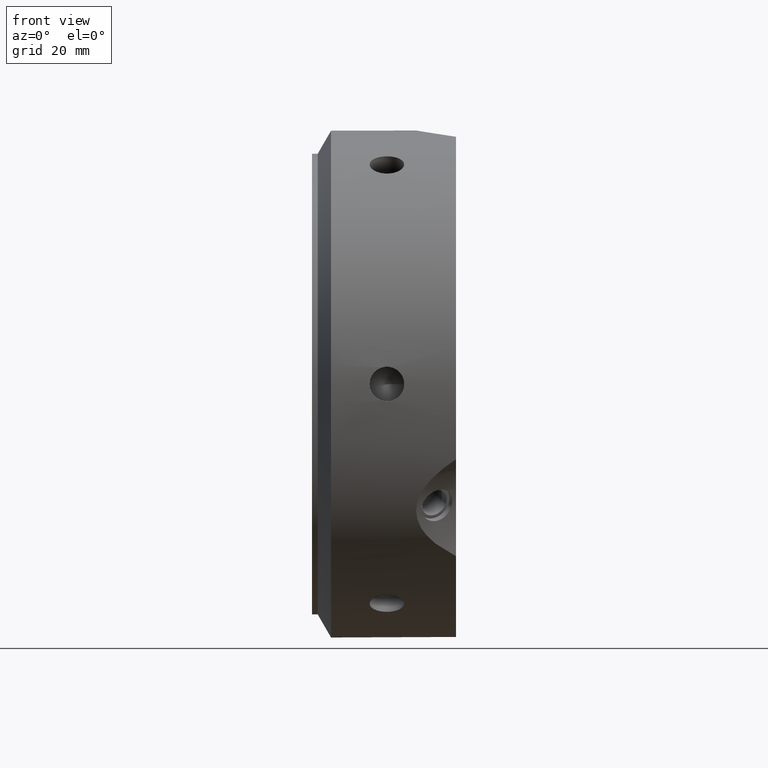
[diagram: clean part render]
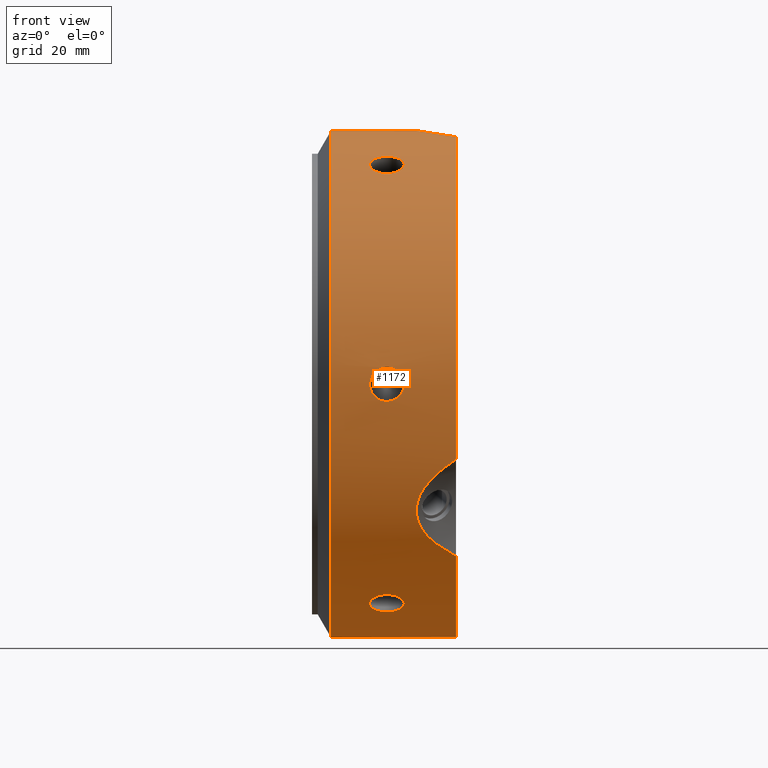
[diagram: same view with one face highlighted and labeled with its STEP entity id]
A machine part, front view. The second image highlights one B-rep face of the part: STEP entity #1172.
In plain terms, the highlighted cylindrical surface (bore or boss wall) has radius 44 mm, axis along (1, 0, 0).
Its self-contained STEP definition (entity closure, byte-faithful):
#90=CARTESIAN_POINT('',(10.0,22.000000000000036,38.105117766515278));
#91=VERTEX_POINT('',#90);
#92=CARTESIAN_POINT('',(16.0,22.000000000000043,38.105117766515278));
#93=VERTEX_POINT('',#92);
#94=CARTESIAN_POINT('',(10.0,22.000000000000043,38.105117766515278));
#95=CARTESIAN_POINT('',(10.0,22.326328743708686,37.916711778490779));
#96=CARTESIAN_POINT('',(10.075329883855455,22.671671312323024,37.711165210294944));
#97=CARTESIAN_POINT('',(10.381527320390463,23.302106828142662,37.324904272929189));
#98=CARTESIAN_POINT('',(10.612388408838191,23.587345932204158,37.144423378365651));
#99=CARTESIAN_POINT('',(11.14497109894193,24.035722732746287,36.855869397632311));
#100=CARTESIAN_POINT('',(11.482235769530414,24.228806475772441,36.728578373075727));
#101=CARTESIAN_POINT('',(12.221339126363999,24.4843182185306,36.558743057832665));
#102=CARTESIAN_POINT('',(12.623187748161129,24.546880279001325,36.516443810540693));
#103=CARTESIAN_POINT('',(13.376812251838873,24.546880279001325,36.516443810540693));
#104=CARTESIAN_POINT('',(13.778660873636001,24.484318218530603,36.558743057832665));
#105=CARTESIAN_POINT('',(14.517764230469584,24.228806475772444,36.728578373075727));
#106=CARTESIAN_POINT('',(14.855028901058066,24.035722732746294,36.855869397632311));
#107=CARTESIAN_POINT('',(15.387611591161807,23.587345932204165,37.144423378365651));
#108=CARTESIAN_POINT('',(15.618472679609539,23.302106828142662,37.324904272929189));
#109=CARTESIAN_POINT('',(15.924670116144545,22.671671312323024,37.711165210294944));
#110=CARTESIAN_POINT('',(16.0,22.326328743708686,37.916711778490779));
#111=CARTESIAN_POINT('',(16.0,22.000000000000036,38.105117766515285));
#112=B_SPLINE_CURVE_WITH_KNOTS('',3,(#94,#95,#96,#97,#98,#99,#100,#101,#102,#103,#104,#105,#106,#107,#108,#109,#110,#111),.UNSPECIFIED.,.F.,.U.,(4,2,2,2,2,2,2,2,4),(0.45217453673272,0.565218129547419,0.678261722362117,0.791305397913779,0.904349073465441,1.017392749017102,1.130436424568764,1.243480017383463,1.356523610198162),.UNSPECIFIED.);
#113=EDGE_CURVE('',#91,#93,#112,.T.);
#115=CARTESIAN_POINT('',(16.0,22.000000000000036,38.105117766515278));
#116=CARTESIAN_POINT('',(16.0,21.673671256291396,38.293523754539777));
#117=CARTESIAN_POINT('',(15.924670116144545,21.322991422265925,38.489825907870056));
#118=CARTESIAN_POINT('',(15.618472679609539,20.673261880107773,38.842668611334929));
#119=CARTESIAN_POINT('',(15.387611591161809,20.374341288487258,38.999452474323128));
#120=CARTESIAN_POINT('',(14.855028901058072,19.900257810537994,39.243481183693532));
#121=CARTESIAN_POINT('',(14.517764230469588,19.693478678085164,39.347051097933672));
#122=CARTESIAN_POINT('',(13.778660873636001,19.418641109245858,39.483413100505949));
#123=CARTESIAN_POINT('',(13.376812251838873,19.350727856294693,39.5164438105407));
#124=CARTESIAN_POINT('',(13.0,19.350727856294693,39.5164438105407));
#125=CARTESIAN_POINT('',(12.623187748161129,19.350727856294693,39.5164438105407));
#126=CARTESIAN_POINT('',(12.221339126363999,19.418641109245858,39.483413100505949));
#127=CARTESIAN_POINT('',(11.482235769530414,19.693478678085164,39.347051097933672));
#128=CARTESIAN_POINT('',(11.14497109894193,19.900257810537994,39.243481183693532));
#129=CARTESIAN_POINT('',(10.612388408838191,20.374341288487258,38.999452474323128));
#130=CARTESIAN_POINT('',(10.381527320390457,20.673261880107777,38.842668611334929));
#131=CARTESIAN_POINT('',(10.075329883855453,21.322991422265929,38.489825907870056));
#132=CARTESIAN_POINT('',(10.0,21.673671256291396,38.293523754539777));
#133=CARTESIAN_POINT('',(10.0,22.000000000000043,38.105117766515278));
#134=B_SPLINE_CURVE_WITH_KNOTS('',3,(#115,#116,#117,#118,#119,#120,#121,#122,#123,#124,#125,#126,#127,#128,#129,#130,#131,#132,#133),.UNSPECIFIED.,.F.,.U.,(4,2,2,2,3,2,2,2,4),(1.356523610198162,1.46956720301286,1.582610795827559,1.69565447137922,1.808698146930882,1.921741822482543,2.034785498034205,2.147829090848904,2.260872683663602),.UNSPECIFIED.);
#135=EDGE_CURVE('',#93,#91,#134,.T.);
#202=CARTESIAN_POINT('',(10.0,44.0,-2.930989E-014));
#203=VERTEX_POINT('',#202);
#204=CARTESIAN_POINT('',(16.0,44.0,-3.108624E-014));
#205=VERTEX_POINT('',#204);
#206=CARTESIAN_POINT('',(9.999999999999998,43.999999999999993,-3.268219E-014));
#207=CARTESIAN_POINT('',(9.999999999999998,43.999999999999993,-0.376811976049028));
#208=CARTESIAN_POINT('',(10.075329883855455,43.994662734588871,-0.778660697575135));
#209=CARTESIAN_POINT('',(10.381527320390463,43.97536870825035,-1.51776433840577));
#210=CARTESIAN_POINT('',(10.612388408838191,43.961687220691338,-1.85502909595751));
#211=CARTESIAN_POINT('',(11.14497109894193,43.935980543284202,-2.387611786061248));
#212=CARTESIAN_POINT('',(11.482235769530414,43.92228515385753,-2.618472724857975));
#213=CARTESIAN_POINT('',(12.221339126363999,43.902959327776387,-2.924670042673307));
#214=CARTESIAN_POINT('',(12.623187748161129,43.89760813529594,-3.000000000000034));
#215=CARTESIAN_POINT('',(13.376812251838871,43.897608135295926,-3.000000000000034));
#216=CARTESIAN_POINT('',(13.778660873635998,43.902959327776387,-2.924670042673308));
#217=CARTESIAN_POINT('',(14.517764230469584,43.92228515385753,-2.618472724857977));
#218=CARTESIAN_POINT('',(14.85502890105807,43.935980543284202,-2.387611786061249));
#219=CARTESIAN_POINT('',(15.387611591161809,43.961687220691338,-1.85502909595751));
#220=CARTESIAN_POINT('',(15.618472679609539,43.97536870825035,-1.51776433840577));
#221=CARTESIAN_POINT('',(15.924670116144545,43.994662734588871,-0.778660697575136));
#222=CARTESIAN_POINT('',(16.0,43.999999999999993,-0.376811976049029));
#223=CARTESIAN_POINT('',(16.0,43.999999999999993,-3.386180E-014));
#224=B_SPLINE_CURVE_WITH_KNOTS('',3,(#206,#207,#208,#209,#210,#211,#212,#213,#214,#215,#216,#217,#218,#219,#220,#221,#222,#223),.UNSPECIFIED.,.F.,.U.,(4,2,2,2,2,2,2,2,4),(0.452174536732721,0.565218129547419,0.678261722362118,0.79130539791378,0.904349073465441,1.017392749017103,1.130436424568764,1.243480017383463,1.356523610198162),.UNSPECIFIED.);
#225=EDGE_CURVE('',#203,#205,#224,.T.);
#227=CARTESIAN_POINT('',(16.0,44.0,-3.400058E-014));
#228=CARTESIAN_POINT('',(16.0,44.0,0.376811976048961));
#229=CARTESIAN_POINT('',(15.924670116144547,43.994662734588879,0.778660697575069));
#230=CARTESIAN_POINT('',(15.618472679609539,43.975368708250357,1.517764338405705));
#231=CARTESIAN_POINT('',(15.387611591161807,43.961687220691331,1.855029095957442));
#232=CARTESIAN_POINT('',(14.855028901058072,43.935980543284202,2.387611786061182));
#233=CARTESIAN_POINT('',(14.517764230469588,43.92228515385753,2.61847272485791));
#234=CARTESIAN_POINT('',(13.778660873636001,43.902959327776387,2.924670042673242));
#235=CARTESIAN_POINT('',(13.376812251838873,43.89760813529594,2.999999999999967));
#236=CARTESIAN_POINT('',(13.0,43.89760813529594,2.999999999999967));
#237=CARTESIAN_POINT('',(12.623187748161129,43.89760813529594,2.999999999999967));
#238=CARTESIAN_POINT('',(12.221339126363999,43.902959327776387,2.924670042673242));
#239=CARTESIAN_POINT('',(11.482235769530414,43.92228515385753,2.61847272485791));
#240=CARTESIAN_POINT('',(11.14497109894193,43.935980543284202,2.387611786061182));
#241=CARTESIAN_POINT('',(10.612388408838191,43.961687220691338,1.855029095957443));
#242=CARTESIAN_POINT('',(10.381527320390463,43.97536870825035,1.517764338405704));
#243=CARTESIAN_POINT('',(10.075329883855455,43.994662734588871,0.77866069757507));
#244=CARTESIAN_POINT('',(9.999999999999998,43.999999999999993,0.376811976048963));
#245=CARTESIAN_POINT('',(9.999999999999998,43.999999999999993,-3.302913E-014));
#246=B_SPLINE_CURVE_WITH_KNOTS('',3,(#227,#228,#229,#230,#231,#232,#233,#234,#235,#236,#237,#238,#239,#240,#241,#242,#243,#244,#245),.UNSPECIFIED.,.F.,.U.,(4,2,2,2,3,2,2,2,4),(1.356523610198162,1.46956720301286,1.582610795827559,1.695654471379221,1.808698146930882,1.921741822482544,2.034785498034205,2.147829090848904,2.260872683663603),.UNSPECIFIED.);
#247=EDGE_CURVE('',#205,#203,#246,.T.);
#314=CARTESIAN_POINT('',(10.0,21.999999999999989,-38.105117766515306));
#315=VERTEX_POINT('',#314);
#316=CARTESIAN_POINT('',(16.0,21.999999999999986,-38.105117766515313));
#317=VERTEX_POINT('',#316);
#318=CARTESIAN_POINT('',(10.0,21.999999999999993,-38.105117766515306));
#319=CARTESIAN_POINT('',(10.0,21.67367125629135,-38.293523754539805));
#320=CARTESIAN_POINT('',(10.075329883855455,21.322991422265872,-38.489825907870085));
#321=CARTESIAN_POINT('',(10.381527320390466,20.673261880107713,-38.842668611334958));
#322=CARTESIAN_POINT('',(10.612388408838191,20.374341288487201,-38.999452474323149));
#323=CARTESIAN_POINT('',(11.14497109894193,19.900257810537948,-39.243481183693554));
#324=CARTESIAN_POINT('',(11.482235769530414,19.693478678085118,-39.347051097933694));
#325=CARTESIAN_POINT('',(12.221339126363999,19.418641109245812,-39.48341310050597));
#326=CARTESIAN_POINT('',(12.623187748161126,19.350727856294647,-39.516443810540729));
#327=CARTESIAN_POINT('',(13.376812251838874,19.350727856294647,-39.516443810540729));
#328=CARTESIAN_POINT('',(13.778660873636001,19.418641109245812,-39.48341310050597));
#329=CARTESIAN_POINT('',(14.517764230469588,19.693478678085118,-39.347051097933694));
#330=CARTESIAN_POINT('',(14.855028901058072,19.900257810537948,-39.243481183693554));
#331=CARTESIAN_POINT('',(15.387611591161811,20.374341288487201,-38.999452474323149));
#332=CARTESIAN_POINT('',(15.618472679609539,20.673261880107724,-38.84266861133495));
#333=CARTESIAN_POINT('',(15.924670116144545,21.322991422265879,-38.489825907870078));
#334=CARTESIAN_POINT('',(16.0,21.673671256291357,-38.293523754539805));
#335=CARTESIAN_POINT('',(16.0,21.999999999999996,-38.105117766515306));
#336=B_SPLINE_CURVE_WITH_KNOTS('',3,(#318,#319,#320,#321,#322,#323,#324,#325,#326,#327,#328,#329,#330,#331,#332,#333,#334,#335),.UNSPECIFIED.,.F.,.U.,(4,2,2,2,2,2,2,2,4),(0.45217453673272,0.565218129547419,0.678261722362117,0.791305397913779,0.904349073465441,1.017392749017102,1.130436424568764,1.243480017383463,1.356523610198161),.UNSPECIFIED.);
#337=EDGE_CURVE('',#315,#317,#336,.T.);
#339=CARTESIAN_POINT('',(16.0,21.999999999999996,-38.105117766515299));
#340=CARTESIAN_POINT('',(16.0,22.32632874370864,-37.916711778490807));
#341=CARTESIAN_POINT('',(15.924670116144547,22.671671312322971,-37.711165210294972));
#342=CARTESIAN_POINT('',(15.618472679609541,23.302106828142612,-37.324904272929217));
#343=CARTESIAN_POINT('',(15.387611591161809,23.587345932204116,-37.144423378365673));
#344=CARTESIAN_POINT('',(14.855028901058072,24.035722732746244,-36.85586939763234));
#345=CARTESIAN_POINT('',(14.51776423046959,24.228806475772402,-36.728578373075756));
#346=CARTESIAN_POINT('',(13.778660873636003,24.484318218530561,-36.5587430578327));
#347=CARTESIAN_POINT('',(13.376812251838873,24.546880279001275,-36.516443810540729));
#348=CARTESIAN_POINT('',(13.0,24.546880279001275,-36.516443810540729));
#349=CARTESIAN_POINT('',(12.623187748161129,24.546880279001275,-36.516443810540729));
#350=CARTESIAN_POINT('',(12.221339126363997,24.484318218530561,-36.5587430578327));
#351=CARTESIAN_POINT('',(11.482235769530412,24.228806475772402,-36.728578373075756));
#352=CARTESIAN_POINT('',(11.14497109894193,24.035722732746244,-36.85586939763234));
#353=CARTESIAN_POINT('',(10.612388408838189,23.587345932204116,-37.144423378365673));
#354=CARTESIAN_POINT('',(10.381527320390463,23.30210682814262,-37.324904272929217));
#355=CARTESIAN_POINT('',(10.075329883855455,22.671671312322982,-37.711165210294972));
#356=CARTESIAN_POINT('',(10.0,22.32632874370864,-37.916711778490814));
#357=CARTESIAN_POINT('',(10.0,21.999999999999993,-38.105117766515313));
#358=B_SPLINE_CURVE_WITH_KNOTS('',3,(#339,#340,#341,#342,#343,#344,#345,#346,#347,#348,#349,#350,#351,#352,#353,#354,#355,#356,#357),.UNSPECIFIED.,.F.,.U.,(4,2,2,2,3,2,2,2,4),(1.356523610198161,1.46956720301286,1.582610795827558,1.69565447137922,1.808698146930881,1.921741822482543,2.034785498034204,2.147829090848903,2.260872683663602),.UNSPECIFIED.);
#359=EDGE_CURVE('',#317,#315,#358,.T.);
#426=CARTESIAN_POINT('',(10.0,-22.000000000000021,-38.105117766515292));
#427=VERTEX_POINT('',#426);
#428=CARTESIAN_POINT('',(16.0,-22.000000000000021,-38.105117766515292));
#429=VERTEX_POINT('',#428);
#430=CARTESIAN_POINT('',(10.0,-22.000000000000021,-38.105117766515292));
#431=CARTESIAN_POINT('',(10.0,-22.326328743708661,-37.916711778490793));
#432=CARTESIAN_POINT('',(10.075329883855453,-22.671671312323003,-37.711165210294958));
#433=CARTESIAN_POINT('',(10.381527320390463,-23.302106828142644,-37.324904272929196));
#434=CARTESIAN_POINT('',(10.612388408838191,-23.587345932204144,-37.144423378365659));
#435=CARTESIAN_POINT('',(11.14497109894193,-24.035722732746269,-36.855869397632326));
#436=CARTESIAN_POINT('',(11.482235769530412,-24.228806475772423,-36.728578373075734));
#437=CARTESIAN_POINT('',(12.221339126364001,-24.484318218530582,-36.558743057832672));
#438=CARTESIAN_POINT('',(12.623187748161131,-24.5468802790013,-36.516443810540707));
#439=CARTESIAN_POINT('',(13.376812251838871,-24.5468802790013,-36.516443810540707));
#440=CARTESIAN_POINT('',(13.778660873636001,-24.484318218530582,-36.558743057832672));
#441=CARTESIAN_POINT('',(14.517764230469588,-24.228806475772423,-36.728578373075734));
#442=CARTESIAN_POINT('',(14.85502890105807,-24.035722732746269,-36.855869397632318));
#443=CARTESIAN_POINT('',(15.387611591161807,-23.587345932204144,-37.144423378365659));
#444=CARTESIAN_POINT('',(15.618472679609535,-23.302106828142644,-37.324904272929203));
#445=CARTESIAN_POINT('',(15.924670116144547,-22.671671312322999,-37.711165210294965));
#446=CARTESIAN_POINT('',(16.0,-22.326328743708661,-37.916711778490793));
#447=CARTESIAN_POINT('',(16.0,-22.000000000000021,-38.105117766515292));
#448=B_SPLINE_CURVE_WITH_KNOTS('',3,(#430,#431,#432,#433,#434,#435,#436,#437,#438,#439,#440,#441,#442,#443,#444,#445,#446,#447),.UNSPECIFIED.,.F.,.U.,(4,2,2,2,2,2,2,2,4),(0.45217453673272,0.565218129547419,0.678261722362118,0.791305397913779,0.904349073465441,1.017392749017102,1.130436424568764,1.243480017383463,1.356523610198162),.UNSPECIFIED.);
#449=EDGE_CURVE('',#427,#429,#448,.T.);
#451=CARTESIAN_POINT('',(16.0,-22.000000000000014,-38.105117766515299));
#452=CARTESIAN_POINT('',(16.0,-21.673671256291371,-38.293523754539798));
#453=CARTESIAN_POINT('',(15.924670116144545,-21.322991422265897,-38.48982590787007));
#454=CARTESIAN_POINT('',(15.618472679609534,-20.673261880107741,-38.842668611334943));
#455=CARTESIAN_POINT('',(15.387611591161807,-20.37434128848723,-38.999452474323135));
#456=CARTESIAN_POINT('',(14.855028901058072,-19.900257810537973,-39.243481183693532));
#457=CARTESIAN_POINT('',(14.517764230469584,-19.693478678085143,-39.347051097933686));
#458=CARTESIAN_POINT('',(13.778660873635996,-19.418641109245836,-39.483413100505956));
#459=CARTESIAN_POINT('',(13.376812251838871,-19.350727856294672,-39.516443810540714));
#460=CARTESIAN_POINT('',(13.0,-19.350727856294672,-39.516443810540714));
#461=CARTESIAN_POINT('',(12.623187748161129,-19.350727856294672,-39.516443810540714));
#462=CARTESIAN_POINT('',(12.221339126363999,-19.41864110924584,-39.483413100505956));
#463=CARTESIAN_POINT('',(11.482235769530414,-19.69347867808515,-39.347051097933686));
#464=CARTESIAN_POINT('',(11.14497109894193,-19.900257810537973,-39.243481183693532));
#465=CARTESIAN_POINT('',(10.612388408838191,-20.37434128848723,-38.999452474323135));
#466=CARTESIAN_POINT('',(10.381527320390465,-20.673261880107745,-38.842668611334936));
#467=CARTESIAN_POINT('',(10.075329883855453,-21.3229914222659,-38.489825907870063));
#468=CARTESIAN_POINT('',(10.000000000000002,-21.673671256291378,-38.293523754539791));
#469=CARTESIAN_POINT('',(10.000000000000002,-22.000000000000021,-38.105117766515292));
#470=B_SPLINE_CURVE_WITH_KNOTS('',3,(#451,#452,#453,#454,#455,#456,#457,#458,#459,#460,#461,#462,#463,#464,#465,#466,#467,#468,#469),.UNSPECIFIED.,.F.,.U.,(4,2,2,2,3,2,2,2,4),(1.356523610198162,1.46956720301286,1.582610795827559,1.69565447137922,1.808698146930882,1.921741822482543,2.034785498034205,2.147829090848904,2.260872683663602),.UNSPECIFIED.);
#471=EDGE_CURVE('',#429,#427,#470,.T.);
#538=CARTESIAN_POINT('',(10.0,-44.0,1.221245E-014));
#539=VERTEX_POINT('',#538);
#540=CARTESIAN_POINT('',(16.0,-44.0,1.554312E-014));
#541=VERTEX_POINT('',#540);
#542=CARTESIAN_POINT('',(9.999999999999998,-43.999999999999993,1.387779E-014));
#543=CARTESIAN_POINT('',(9.999999999999998,-43.999999999999993,0.37681197604901));
#544=CARTESIAN_POINT('',(10.075329883855455,-43.994662734588871,0.778660697575116));
#545=CARTESIAN_POINT('',(10.381527320390463,-43.97536870825035,1.517764338405751));
#546=CARTESIAN_POINT('',(10.612388408838189,-43.961687220691338,1.85502909595749));
#547=CARTESIAN_POINT('',(11.14497109894193,-43.935980543284202,2.38761178606123));
#548=CARTESIAN_POINT('',(11.482235769530414,-43.92228515385753,2.618472724857957));
#549=CARTESIAN_POINT('',(12.221339126363999,-43.902959327776387,2.924670042673289));
#550=CARTESIAN_POINT('',(12.623187748161129,-43.89760813529594,3.000000000000015));
#551=CARTESIAN_POINT('',(13.376812251838873,-43.89760813529594,3.000000000000015));
#552=CARTESIAN_POINT('',(13.778660873636001,-43.902959327776387,2.924670042673289));
#553=CARTESIAN_POINT('',(14.517764230469588,-43.92228515385753,2.618472724857957));
#554=CARTESIAN_POINT('',(14.855028901058072,-43.935980543284202,2.38761178606123));
#555=CARTESIAN_POINT('',(15.387611591161809,-43.961687220691338,1.855029095957491));
#556=CARTESIAN_POINT('',(15.618472679609539,-43.97536870825035,1.517764338405752));
#557=CARTESIAN_POINT('',(15.924670116144545,-43.994662734588871,0.778660697575117));
#558=CARTESIAN_POINT('',(16.0,-43.999999999999993,0.37681197604901));
#559=CARTESIAN_POINT('',(16.0,-43.999999999999993,1.471046E-014));
#560=B_SPLINE_CURVE_WITH_KNOTS('',3,(#542,#543,#544,#545,#546,#547,#548,#549,#550,#551,#552,#553,#554,#555,#556,#557,#558,#559),.UNSPECIFIED.,.F.,.U.,(4,2,2,2,2,2,2,2,4),(0.452174536732721,0.565218129547419,0.678261722362118,0.79130539791378,0.904349073465441,1.017392749017103,1.130436424568764,1.243480017383463,1.356523610198162),.UNSPECIFIED.);
#561=EDGE_CURVE('',#539,#541,#560,.T.);
#563=CARTESIAN_POINT('',(16.0,-43.999999999999993,1.484923E-014));
#564=CARTESIAN_POINT('',(16.0,-43.999999999999993,-0.376811976048981));
#565=CARTESIAN_POINT('',(15.924670116144545,-43.994662734588871,-0.778660697575088));
#566=CARTESIAN_POINT('',(15.618472679609539,-43.97536870825035,-1.517764338405722));
#567=CARTESIAN_POINT('',(15.387611591161809,-43.961687220691338,-1.855029095957461));
#568=CARTESIAN_POINT('',(14.855028901058072,-43.935980543284202,-2.3876117860612));
#569=CARTESIAN_POINT('',(14.517764230469588,-43.92228515385753,-2.618472724857929));
#570=CARTESIAN_POINT('',(13.778660873636001,-43.902959327776387,-2.924670042673261));
#571=CARTESIAN_POINT('',(13.376812251838873,-43.89760813529594,-2.999999999999986));
#572=CARTESIAN_POINT('',(13.0,-43.89760813529594,-2.999999999999986));
#573=CARTESIAN_POINT('',(12.623187748161129,-43.89760813529594,-2.999999999999986));
#574=CARTESIAN_POINT('',(12.221339126363999,-43.902959327776387,-2.924670042673261));
#575=CARTESIAN_POINT('',(11.482235769530414,-43.92228515385753,-2.618472724857929));
#576=CARTESIAN_POINT('',(11.14497109894193,-43.935980543284202,-2.387611786061201));
#577=CARTESIAN_POINT('',(10.612388408838191,-43.961687220691338,-1.855029095957462));
#578=CARTESIAN_POINT('',(10.381527320390463,-43.97536870825035,-1.517764338405723));
#579=CARTESIAN_POINT('',(10.075329883855455,-43.994662734588871,-0.778660697575089));
#580=CARTESIAN_POINT('',(9.999999999999998,-43.999999999999993,-0.376811976048982));
#581=CARTESIAN_POINT('',(9.999999999999998,-43.999999999999993,1.408595E-014));
#582=B_SPLINE_CURVE_WITH_KNOTS('',3,(#563,#564,#565,#566,#567,#568,#569,#570,#571,#572,#573,#574,#575,#576,#577,#578,#579,#580,#581),.UNSPECIFIED.,.F.,.U.,(4,2,2,2,3,2,2,2,4),(1.356523610198162,1.46956720301286,1.582610795827559,1.69565447137922,1.808698146930882,1.921741822482543,2.034785498034205,2.147829090848904,2.260872683663603),.UNSPECIFIED.);
#583=EDGE_CURVE('',#541,#539,#582,.T.);
#687=CARTESIAN_POINT('',(10.0,-21.999999999999996,38.105117766515299));
#688=VERTEX_POINT('',#687);
#689=CARTESIAN_POINT('',(16.0,-21.999999999999993,38.105117766515306));
#690=VERTEX_POINT('',#689);
#691=CARTESIAN_POINT('',(10.0,-21.999999999999996,38.105117766515306));
#692=CARTESIAN_POINT('',(10.0,-21.673671256291357,38.293523754539805));
#693=CARTESIAN_POINT('',(10.075329883855453,-21.322991422265876,38.489825907870085));
#694=CARTESIAN_POINT('',(10.381527320390465,-20.673261880107717,38.842668611334958));
#695=CARTESIAN_POINT('',(10.612388408838189,-20.374341288487201,38.999452474323149));
#696=CARTESIAN_POINT('',(11.14497109894193,-19.900257810537944,39.243481183693554));
#697=CARTESIAN_POINT('',(11.482235769530414,-19.693478678085118,39.347051097933694));
#698=CARTESIAN_POINT('',(12.221339126363999,-19.418641109245808,39.48341310050597));
#699=CARTESIAN_POINT('',(12.623187748161126,-19.350727856294647,39.516443810540729));
#700=CARTESIAN_POINT('',(13.376812251838874,-19.350727856294647,39.516443810540729));
#701=CARTESIAN_POINT('',(13.778660873636007,-19.418641109245812,39.48341310050597));
#702=CARTESIAN_POINT('',(14.517764230469592,-19.693478678085118,39.347051097933694));
#703=CARTESIAN_POINT('',(14.855028901058072,-19.900257810537948,39.243481183693554));
#704=CARTESIAN_POINT('',(15.387611591161811,-20.374341288487201,38.999452474323149));
#705=CARTESIAN_POINT('',(15.618472679609535,-20.673261880107724,38.842668611334958));
#706=CARTESIAN_POINT('',(15.924670116144545,-21.322991422265879,38.489825907870078));
#707=CARTESIAN_POINT('',(16.0,-21.673671256291346,38.293523754539805));
#708=CARTESIAN_POINT('',(16.0,-21.999999999999989,38.105117766515306));
#709=B_SPLINE_CURVE_WITH_KNOTS('',3,(#691,#692,#693,#694,#695,#696,#697,#698,#699,#700,#701,#702,#703,#704,#705,#706,#707,#708),.UNSPECIFIED.,.F.,.U.,(4,2,2,2,2,2,2,2,4),(0.452174536732721,0.565218129547419,0.678261722362118,0.79130539791378,0.904349073465441,1.017392749017103,1.130436424568765,1.243480017383463,1.356523610198162),.UNSPECIFIED.);
#710=EDGE_CURVE('',#688,#690,#709,.T.);
#712=CARTESIAN_POINT('',(16.0,-21.999999999999993,38.105117766515313));
#713=CARTESIAN_POINT('',(16.0,-22.326328743708636,37.916711778490814));
#714=CARTESIAN_POINT('',(15.924670116144547,-22.671671312322971,37.711165210294979));
#715=CARTESIAN_POINT('',(15.618472679609541,-23.302106828142612,37.324904272929224));
#716=CARTESIAN_POINT('',(15.387611591161811,-23.587345932204112,37.144423378365673));
#717=CARTESIAN_POINT('',(14.855028901058072,-24.035722732746237,36.85586939763234));
#718=CARTESIAN_POINT('',(14.51776423046959,-24.228806475772394,36.728578373075756));
#719=CARTESIAN_POINT('',(13.778660873636003,-24.484318218530557,36.5587430578327));
#720=CARTESIAN_POINT('',(13.376812251838874,-24.546880279001279,36.516443810540736));
#721=CARTESIAN_POINT('',(13.0,-24.546880279001279,36.516443810540736));
#722=CARTESIAN_POINT('',(12.623187748161129,-24.546880279001279,36.516443810540736));
#723=CARTESIAN_POINT('',(12.221339126363999,-24.484318218530557,36.5587430578327));
#724=CARTESIAN_POINT('',(11.482235769530412,-24.228806475772394,36.728578373075756));
#725=CARTESIAN_POINT('',(11.14497109894193,-24.035722732746244,36.85586939763234));
#726=CARTESIAN_POINT('',(10.612388408838191,-23.587345932204116,37.144423378365673));
#727=CARTESIAN_POINT('',(10.381527320390461,-23.30210682814262,37.324904272929217));
#728=CARTESIAN_POINT('',(10.075329883855451,-22.671671312322982,37.711165210294972));
#729=CARTESIAN_POINT('',(9.999999999999998,-22.326328743708629,37.916711778490807));
#730=CARTESIAN_POINT('',(9.999999999999998,-21.999999999999989,38.105117766515306));
#731=B_SPLINE_CURVE_WITH_KNOTS('',3,(#712,#713,#714,#715,#716,#717,#718,#719,#720,#721,#722,#723,#724,#725,#726,#727,#728,#729,#730),.UNSPECIFIED.,.F.,.U.,(4,2,2,2,3,2,2,2,4),(1.356523610198162,1.46956720301286,1.582610795827559,1.69565447137922,1.808698146930882,1.921741822482544,2.034785498034205,2.147829090848904,2.260872683663603),.UNSPECIFIED.);
#732=EDGE_CURVE('',#690,#688,#731,.T.);
#873=CARTESIAN_POINT('',(24.999999999999986,32.301979472688544,-29.87611290221686));
#874=VERTEX_POINT('',#873);
#875=CARTESIAN_POINT('',(24.999999999999986,42.024462475996074,-13.036278364763378));
#876=VERTEX_POINT('',#875);
#884=CARTESIAN_POINT('',(24.999999999999964,42.024462475996089,-13.036278364763351));
#885=CARTESIAN_POINT('',(24.42718300322241,41.908836027969343,-13.409018129163165));
#886=CARTESIAN_POINT('',(23.87227621470516,41.78385656766396,-13.794500395811465));
#887=CARTESIAN_POINT('',(22.012395466236203,41.308054339824587,-15.190493108608312));
#888=CARTESIAN_POINT('',(20.670407324933336,40.857337234891418,-16.395241108717574));
#889=CARTESIAN_POINT('',(19.188434315199835,39.976049366804112,-18.396928609773607));
#890=CARTESIAN_POINT('',(18.78199730742384,39.647758863475516,-19.097144794740931));
#891=CARTESIAN_POINT('',(18.223393473193738,38.924013254919075,-20.532094740923537));
#892=CARTESIAN_POINT('',(18.071796769724465,38.528347709341247,-21.266944235741008));
#893=CARTESIAN_POINT('',(18.071796769724465,37.681887823689344,-22.733055764259042));
#894=CARTESIAN_POINT('',(18.223393473193742,37.243322266008171,-23.443136925540404));
#895=CARTESIAN_POINT('',(18.78199730742384,36.362491963733142,-24.787393981519003));
#896=CARTESIAN_POINT('',(19.188434315199828,35.920232211074712,-25.421809989706411));
#897=CARTESIAN_POINT('',(20.670407324933326,34.627363918766044,-27.185871422045057));
#898=CARTESIAN_POINT('',(22.012395466236192,33.809380097979513,-28.178577884891993));
#899=CARTESIAN_POINT('',(23.87227621470516,32.83831605911918,-29.288631057776556));
#900=CARTESIAN_POINT('',(24.427183003222414,32.566968353646033,-29.589607578676439));
#901=CARTESIAN_POINT('',(24.999999999999979,32.301979472688529,-29.876112902216864));
#902=B_SPLINE_CURVE_WITH_KNOTS('',3,(#884,#885,#886,#887,#888,#889,#890,#891,#892,#893,#894,#895,#896,#897,#898,#899,#900,#901),.UNSPECIFIED.,.F.,.U.,(4,2,2,2,2,2,2,2,4),(2.282498781001778,2.486725779772551,2.994601711163694,3.248539676859265,3.502477642554836,3.756415608250407,4.010353573945977,4.518229505337119,4.722456504107894),.UNSPECIFIED.);
#903=EDGE_CURVE('',#876,#874,#902,.T.);
#1044=CARTESIAN_POINT('',(24.999999999999986,-42.024462475996096,-13.036278364763351));
#1045=VERTEX_POINT('',#1044);
#1046=CARTESIAN_POINT('',(24.999999999999986,-32.301979472688572,-29.876112902216821));
#1047=VERTEX_POINT('',#1046);
#1055=CARTESIAN_POINT('',(24.999999999999979,-32.301979472688565,-29.876112902216828));
#1056=CARTESIAN_POINT('',(24.376666182780035,-32.590337764459399,-29.564340629429964));
#1057=CARTESIAN_POINT('',(23.774628823260887,-32.886169427186694,-29.235504242196416));
#1058=CARTESIAN_POINT('',(21.90366000109314,-33.87458668116966,-28.099791824648115));
#1059=CARTESIAN_POINT('',(20.595581938138125,-34.68178519423298,-27.115451977279147));
#1060=CARTESIAN_POINT('',(19.154201130648236,-35.955937188094978,-25.371028613150955));
#1061=CARTESIAN_POINT('',(18.759557593973238,-36.391556658702243,-24.744326592999396));
#1062=CARTESIAN_POINT('',(18.218063369410423,-37.258376017995559,-23.418806784282879));
#1063=CARTESIAN_POINT('',(18.071796769724475,-37.68957135990761,-22.71974748914721));
#1064=CARTESIAN_POINT('',(18.071796769724475,-38.520664173123016,-21.280252510852776));
#1065=CARTESIAN_POINT('',(18.218063369410441,-38.910469610506119,-20.557296743195593));
#1066=CARTESIAN_POINT('',(18.759557593973259,-39.624993758427458,-19.143849253197168));
#1067=CARTESIAN_POINT('',(19.154201130648236,-39.949923893178109,-18.453240715192372));
#1068=CARTESIAN_POINT('',(20.595581938138125,-40.823562844537229,-16.47758103816119));
#1069=CARTESIAN_POINT('',(21.90366000109314,-41.272426901784385,-15.286356696266839));
#1070=CARTESIAN_POINT('',(23.774628823260887,-41.761774079783166,-13.862506036004582));
#1071=CARTESIAN_POINT('',(24.376666182780035,-41.898638913452473,-13.441890107222186));
#1072=CARTESIAN_POINT('',(24.999999999999972,-42.024462475996096,-13.036278364763323));
#1073=B_SPLINE_CURVE_WITH_KNOTS('',3,(#1055,#1056,#1057,#1058,#1059,#1060,#1061,#1062,#1063,#1064,#1065,#1066,#1067,#1068,#1069,#1070,#1071,#1072),.UNSPECIFIED.,.F.,.U.,(4,2,2,2,2,2,2,2,4),(2.21270391074662,2.434506557988923,2.933162245918167,3.182490089882789,3.431817933847412,3.681145777812034,3.930473621776656,4.429129309705901,4.650931956948202),.UNSPECIFIED.);
#1074=EDGE_CURVE('',#1047,#1045,#1073,.T.);
#1082=CARTESIAN_POINT('',(14.154700538379238,0.0,0.0));
#1083=DIRECTION('',(1.0,0.0,0.0));
#1084=DIRECTION('',(0.0,1.0,0.0));
#1085=AXIS2_PLACEMENT_3D('',#1082,#1083,#1084);
#1086=CYLINDRICAL_SURFACE('',#1085,44.0);
#1087=CARTESIAN_POINT('',(3.309401076758492,44.0,0.0));
#1088=VERTEX_POINT('',#1087);
#1089=CARTESIAN_POINT('',(3.309401076758492,0.0,0.0));
#1090=DIRECTION('',(1.0,0.0,0.0));
#1091=DIRECTION('',(0.0,1.0,0.0));
#1092=AXIS2_PLACEMENT_3D('',#1089,#1090,#1091);
#1093=CIRCLE('',#1092,44.0);
#1094=EDGE_CURVE('',#1088,#1088,#1093,.T.);
#1095=ORIENTED_EDGE('',*,*,#1094,.T.);
#1096=EDGE_LOOP('',(#1095));
#1097=FACE_OUTER_BOUND('',#1096,.T.);
#1098=ORIENTED_EDGE('',*,*,#113,.T.);
#1099=ORIENTED_EDGE('',*,*,#135,.T.);
#1100=EDGE_LOOP('',(#1098,#1099));
#1101=FACE_BOUND('',#1100,.T.);
#1102=ORIENTED_EDGE('',*,*,#225,.T.);
#1103=ORIENTED_EDGE('',*,*,#247,.T.);
#1104=EDGE_LOOP('',(#1102,#1103));
#1105=FACE_BOUND('',#1104,.T.);
#1106=ORIENTED_EDGE('',*,*,#337,.T.);
#1107=ORIENTED_EDGE('',*,*,#359,.T.);
#1108=EDGE_LOOP('',(#1106,#1107));
#1109=FACE_BOUND('',#1108,.T.);
#1110=ORIENTED_EDGE('',*,*,#449,.T.);
#1111=ORIENTED_EDGE('',*,*,#471,.T.);
#1112=EDGE_LOOP('',(#1110,#1111));
#1113=FACE_BOUND('',#1112,.T.);
#1114=ORIENTED_EDGE('',*,*,#561,.T.);
#1115=ORIENTED_EDGE('',*,*,#583,.T.);
#1116=EDGE_LOOP('',(#1114,#1115));
#1117=FACE_BOUND('',#1116,.T.);
#1118=ORIENTED_EDGE('',*,*,#710,.T.);
#1119=ORIENTED_EDGE('',*,*,#732,.T.);
#1120=EDGE_LOOP('',(#1118,#1119));
#1121=FACE_BOUND('',#1120,.T.);
#1122=ORIENTED_EDGE('',*,*,#903,.T.);
#1123=CARTESIAN_POINT('',(24.999999999999986,0.0,0.0));
#1124=DIRECTION('',(1.0,0.0,0.0));
#1125=DIRECTION('',(0.0,1.0,0.0));
#1126=AXIS2_PLACEMENT_3D('',#1123,#1124,#1125);
#1127=CIRCLE('',#1126,44.0);
#1128=EDGE_CURVE('',#1047,#874,#1127,.T.);
#1129=ORIENTED_EDGE('',*,*,#1128,.F.);
#1130=ORIENTED_EDGE('',*,*,#1074,.T.);
#1131=CARTESIAN_POINT('',(24.999999999999986,-9.722483003307554,42.912391266980173));
#1132=VERTEX_POINT('',#1131);
#1133=CARTESIAN_POINT('',(24.999999999999986,0.0,0.0));
#1134=DIRECTION('',(1.0,0.0,0.0));
#1135=DIRECTION('',(0.0,1.0,0.0));
#1136=AXIS2_PLACEMENT_3D('',#1133,#1134,#1135);
#1137=CIRCLE('',#1136,44.0);
#1138=EDGE_CURVE('',#1132,#1045,#1137,.T.);
#1139=ORIENTED_EDGE('',*,*,#1138,.F.);
#1140=CARTESIAN_POINT('',(24.999999999999986,9.722483003307554,42.912391266980173));
#1141=VERTEX_POINT('',#1140);
#1142=CARTESIAN_POINT('',(24.999999999999986,-9.722483003307552,42.912391266980165));
#1143=CARTESIAN_POINT('',(23.721762037481888,-8.873142000228178,43.104822945165523));
#1144=CARTESIAN_POINT('',(22.534110533251962,-7.948504294743604,43.288490119193327));
#1145=CARTESIAN_POINT('',(20.59311957718792,-6.03499694300406,43.593495527429695));
#1146=CARTESIAN_POINT('',(19.70363686901343,-4.960087317769927,43.735785609488147));
#1147=CARTESIAN_POINT('',(18.753664582686191,-3.178315433625748,43.889106612659262));
#1148=CARTESIAN_POINT('',(18.499903811193253,-2.555659938386888,43.930314054898417));
#1149=CARTESIAN_POINT('',(18.158765006777827,-1.285823647150529,43.985799393445326));
#1150=CARTESIAN_POINT('',(18.071796769724475,-0.63852941997398,44.0));
#1151=CARTESIAN_POINT('',(18.071796769724475,0.63852941997398,44.0));
#1152=CARTESIAN_POINT('',(18.158765006777827,1.285823647150529,43.985799393445326));
#1153=CARTESIAN_POINT('',(18.499903811193253,2.555659938386888,43.930314054898417));
#1154=CARTESIAN_POINT('',(18.753664582686191,3.178315433625748,43.889106612659262));
#1155=CARTESIAN_POINT('',(19.70363686901343,4.960087317769927,43.735785609488147));
#1156=CARTESIAN_POINT('',(20.59311957718792,6.03499694300406,43.593495527429695));
#1157=CARTESIAN_POINT('',(22.534110533251955,7.948504294743604,43.288490119193327));
#1158=CARTESIAN_POINT('',(23.721762037481895,8.873142000228182,43.104822945165523));
#1159=CARTESIAN_POINT('',(24.999999999999993,9.722483003307554,42.912391266980165));
#1160=B_SPLINE_CURVE_WITH_KNOTS('',3,(#1142,#1143,#1144,#1145,#1146,#1147,#1148,#1149,#1150,#1151,#1152,#1153,#1154,#1155,#1156,#1157,#1158,#1159),.UNSPECIFIED.,.F.,.U.,(4,2,2,2,2,2,2,2,4),(1.281617076656252,1.721286524604976,2.104404176589363,2.295963002581557,2.487521828573751,2.679080654565945,2.870639480558138,3.253757132542525,3.693426580491249),.UNSPECIFIED.);
#1161=EDGE_CURVE('',#1132,#1141,#1160,.T.);
#1162=ORIENTED_EDGE('',*,*,#1161,.T.);
#1163=CARTESIAN_POINT('',(24.999999999999986,0.0,0.0));
#1164=DIRECTION('',(1.0,0.0,0.0));
#1165=DIRECTION('',(0.0,1.0,0.0));
#1166=AXIS2_PLACEMENT_3D('',#1163,#1164,#1165);
#1167=CIRCLE('',#1166,44.0);
#1168=EDGE_CURVE('',#876,#1141,#1167,.T.);
#1169=ORIENTED_EDGE('',*,*,#1168,.F.);
#1170=EDGE_LOOP('',(#1122,#1129,#1130,#1139,#1162,#1169));
#1171=FACE_BOUND('',#1170,.T.);
#1172=ADVANCED_FACE('',(#1097,#1101,#1105,#1109,#1113,#1117,#1121,#1171),#1086,.T.);